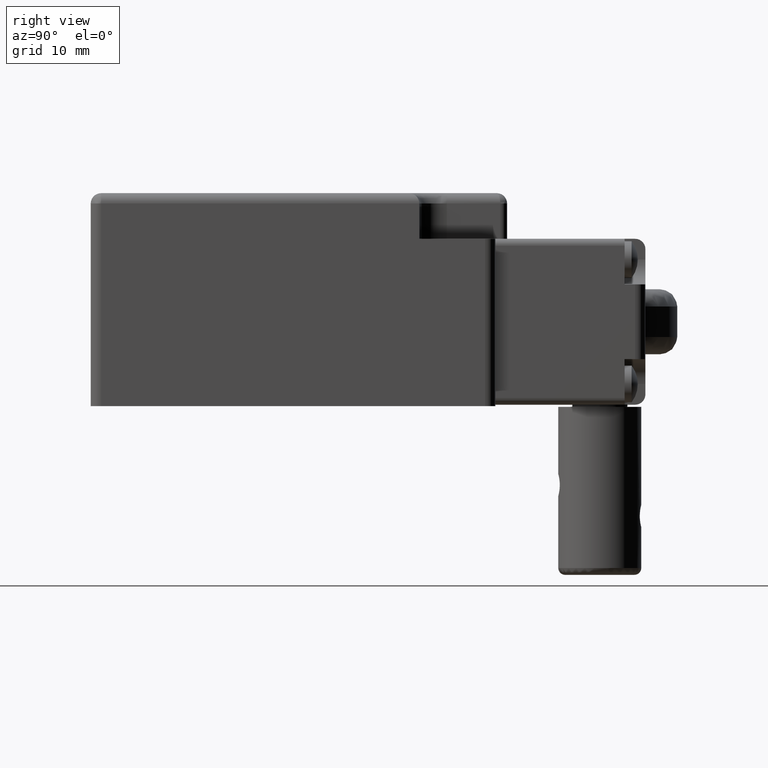
[diagram: clean part render]
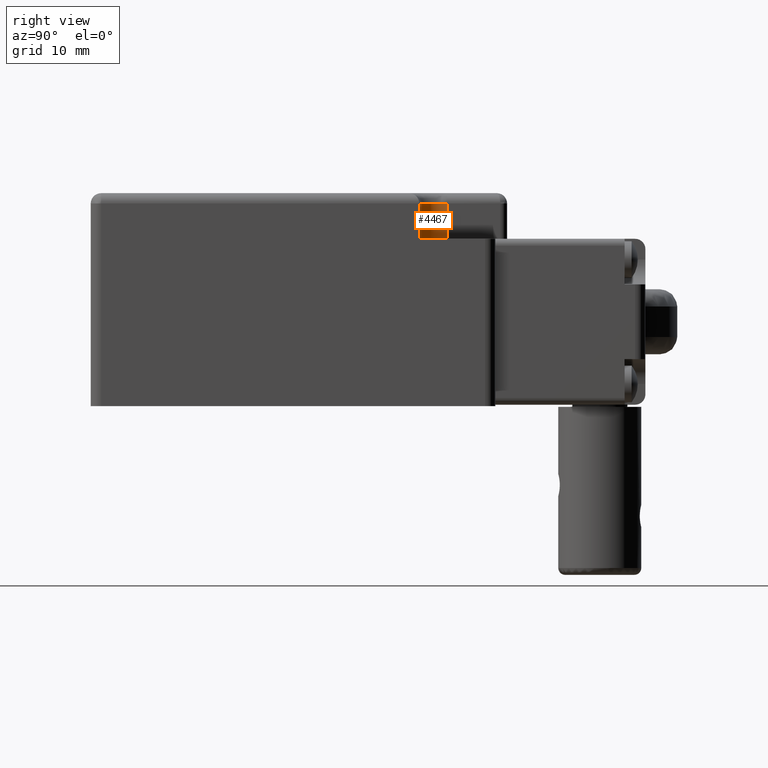
[diagram: same view with one face highlighted and labeled with its STEP entity id]
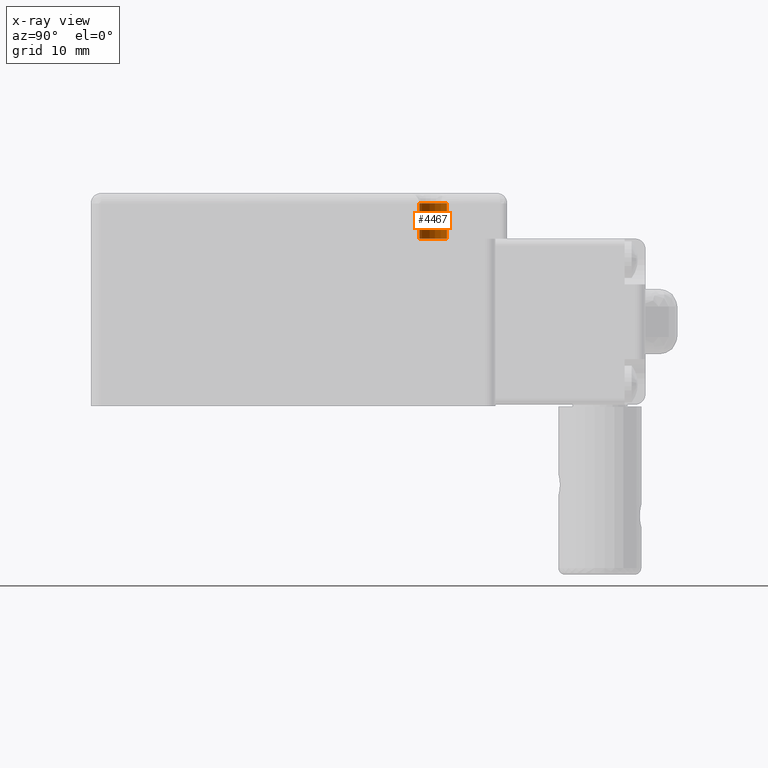
[diagram: x-ray of the same camera — body ghosted, the highlighted face saturated]
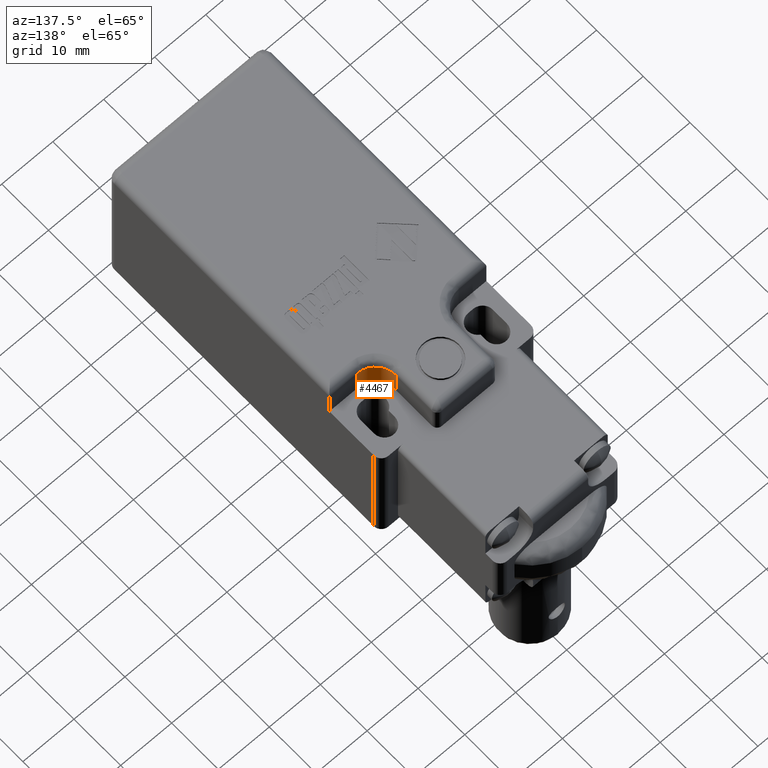
[diagram: same view with one face highlighted and labeled with its STEP entity id]
A machine part, right view. The second image highlights one B-rep face of the part: STEP entity #4467.
The next image is the same camera in x-ray: the body ghosted, the highlighted face saturated — about 0% of this face is hidden behind the body in this view.
A second angle (auxiliary view) of the same face is appended — the face is thin or edge-on in the first view.
In plain terms, the highlighted cylindrical surface (edge-blend (fillet) strip) has radius 4 mm, axis along (0, 0, 1).
Its self-contained STEP definition (entity closure, byte-faithful):
#3498=CARTESIAN_POINT('',(6.000000000000004,3.469447E-015,12.000000000000004));
#3499=VERTEX_POINT('',#3498);
#3506=CARTESIAN_POINT('',(10.000000000000007,-4.0,12.000000000000004));
#3507=VERTEX_POINT('',#3506);
#3508=CARTESIAN_POINT('',(10.000000000000007,3.469447E-015,12.000000000000004));
#3509=DIRECTION('',(0.0,0.0,-1.0));
#3510=DIRECTION('',(-1.0,0.0,0.0));
#3511=AXIS2_PLACEMENT_3D('',#3508,#3509,#3510);
#3512=CIRCLE('',#3511,4.000000000000004);
#3513=EDGE_CURVE('',#3507,#3499,#3512,.T.);
#4424=CARTESIAN_POINT('',(6.000000000000004,3.469447E-015,17.100000000000001));
#4425=VERTEX_POINT('',#4424);
#4426=CARTESIAN_POINT('',(6.000000000000004,3.469447E-015,12.000000000000004));
#4427=DIRECTION('',(0.0,0.0,1.0));
#4428=VECTOR('',#4427,5.099999999999998);
#4429=LINE('',#4426,#4428);
#4430=EDGE_CURVE('',#3499,#4425,#4429,.T.);
#4443=CARTESIAN_POINT('',(10.000000000000005,3.552714E-015,11.999999990000003));
#4444=DIRECTION('',(0.0,0.0,1.0));
#4445=DIRECTION('',(0.707106781186547,0.707106781186548,0.0));
#4446=AXIS2_PLACEMENT_3D('',#4443,#4444,#4445);
#4447=CYLINDRICAL_SURFACE('',#4446,4.000000000000004);
#4448=CARTESIAN_POINT('',(10.000000000000007,-4.0,17.100000000000001));
#4449=VERTEX_POINT('',#4448);
#4450=CARTESIAN_POINT('',(10.000000000000007,-4.0,12.000000000000004));
#4451=DIRECTION('',(0.0,0.0,1.0));
#4452=VECTOR('',#4451,5.099999999999998);
#4453=LINE('',#4450,#4452);
#4454=EDGE_CURVE('',#3507,#4449,#4453,.T.);
#4455=ORIENTED_EDGE('',*,*,#4454,.F.);
#4456=ORIENTED_EDGE('',*,*,#3513,.T.);
#4457=ORIENTED_EDGE('',*,*,#4430,.T.);
#4458=CARTESIAN_POINT('',(10.000000000000007,3.469447E-015,17.100000000000001));
#4459=DIRECTION('',(0.0,0.0,-1.0));
#4460=DIRECTION('',(1.0,0.0,0.0));
#4461=AXIS2_PLACEMENT_3D('',#4458,#4459,#4460);
#4462=CIRCLE('',#4461,4.000000000000004);
#4463=EDGE_CURVE('',#4449,#4425,#4462,.T.);
#4464=ORIENTED_EDGE('',*,*,#4463,.F.);
#4465=EDGE_LOOP('',(#4455,#4456,#4457,#4464));
#4466=FACE_OUTER_BOUND('',#4465,.T.);
#4467=ADVANCED_FACE('',(#4466),#4447,.F.);